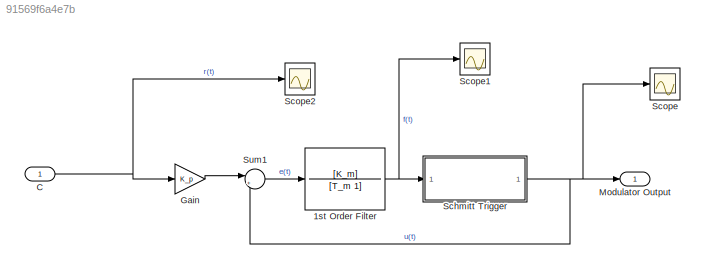
MODEL slx_91569f6a4e7b
KIND model
CONFIG AbsTol = auto
CONFIG EnableMultiTasking = off
CONFIG FixedStep = auto
CONFIG MaxStep = auto
CONFIG MinStep = auto
CONFIG RelTol = 1e-3
CONFIG SampleTimeConstraint = Unconstrained
CONFIG SolverName = VariableStepAuto
CONFIG StartTime = 0.0
CONFIG StopTime = 0.6
BLOCK [TransferFcn] 1st Order Filter
  Denominator = [T_m 1]
  Numerator = [K_m]
BLOCK [Inport] C
BLOCK [Gain] Gain
  Gain = K_p
BLOCK [Outport] Modulator Output
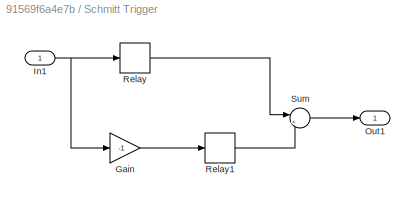
BLOCK [SubSystem] Schmitt Trigger
  Ports = [1, 1]
  RequestExecContextInheritance = off
BLOCK [Gain] Schmitt Trigger/Gain
  Gain = -1
BLOCK [Inport] Schmitt Trigger/In1
BLOCK [Outport] Schmitt Trigger/Out1
BLOCK [Relay] Schmitt Trigger/Relay
  OffSwitchValue = U_off
  OnSwitchValue = U_on
BLOCK [Relay] Schmitt Trigger/Relay1
  OffSwitchValue = U_off
  OnSwitchValue = U_on
BLOCK [Sum] Schmitt Trigger/Sum
  Inputs = |++
  Ports = [2, 1]
BLOCK [Scope] Scope
  Floating = off
  NumInputPorts = 1
  Ports = [1]
  ScopeSpecificationString = Simulink.scopes.TimeScopeBlockCfg('CurrentConfiguration', extmgr.ConfigurationSet(extmgr.Configuration('Core','General UI',true),extmgr.Configuration('Core','Source UI',true),extmgr.Configuration('Sources','WiredSimulink',true),extmgr.Configuration('Visuals','Time Domain',true,'SerializedDisplays',{struct('MinYLimReal','-0.125','MaxYLimReal','1.125','YLabelReal','','MinYLimMag','0.00000','MaxYLimM...<+1342ch>
BLOCK [Scope] Scope1
  Floating = off
  NumInputPorts = 1
  Ports = [1]
  ScopeSpecificationString = Simulink.scopes.TimeScopeBlockCfg('CurrentConfiguration', extmgr.ConfigurationSet(extmgr.Configuration('Core','General UI',true),extmgr.Configuration('Core','Source UI',true),extmgr.Configuration('Sources','WiredSimulink',true,'DataLoggingVariableName','ScopeData1'),extmgr.Configuration('Visuals','Time Domain',true,'SerializedDisplays',{struct('MinYLimReal','-0.05625','MaxYLimReal','0.50625','YLab...<+1392ch>
BLOCK [Scope] Scope2
  Floating = off
  NumInputPorts = 1
  Ports = [1]
  ScopeSpecificationString = Simulink.scopes.TimeScopeBlockCfg('CurrentConfiguration', extmgr.ConfigurationSet(extmgr.Configuration('Core','General UI',true),extmgr.Configuration('Core','Source UI',true),extmgr.Configuration('Sources','WiredSimulink',true,'DataLoggingVariableName','ScopeData2'),extmgr.Configuration('Visuals','Time Domain',true,'SerializedDisplays',{struct('MinYLimReal','0.4','MaxYLimReal','0.6','YLabelReal','...<+1364ch>
BLOCK [Sum] Sum1
  Inputs = |+-
  Ports = [2, 1]
NET 1st Order Filter:1 -> Schmitt Trigger:1, Scope1:1
NET C:1 -> Gain:1, Scope2:1
LINE Gain:1 -> Sum1:1
LINE Schmitt Trigger/Gain:1 -> Schmitt Trigger/Relay1:1
NET Schmitt Trigger/In1:1 -> Schmitt Trigger/Gain:1, Schmitt Trigger/Relay:1
LINE Schmitt Trigger/Relay1:1 -> Schmitt Trigger/Sum:2
LINE Schmitt Trigger/Relay:1 -> Schmitt Trigger/Sum:1
LINE Schmitt Trigger/Sum:1 -> Schmitt Trigger/Out1:1
NET Schmitt Trigger:1 -> Modulator Output:1, Scope:1, Sum1:2
LINE Sum1:1 -> 1st Order Filter:1
note: NET lines group one-source signal fan-out (src -> all destinations, sorted); 1:1 wires keep LINE
